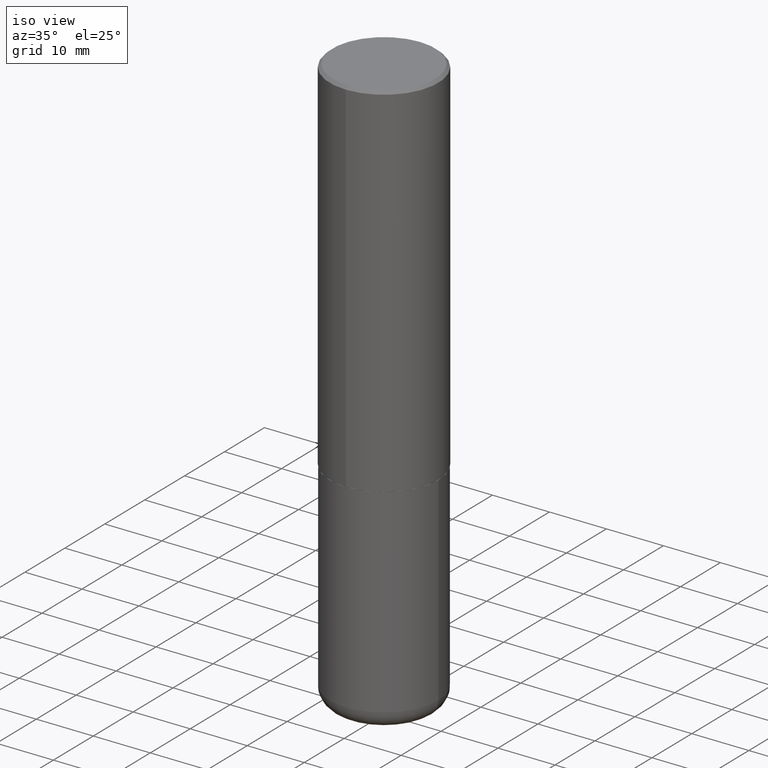
[diagram: clean part render]
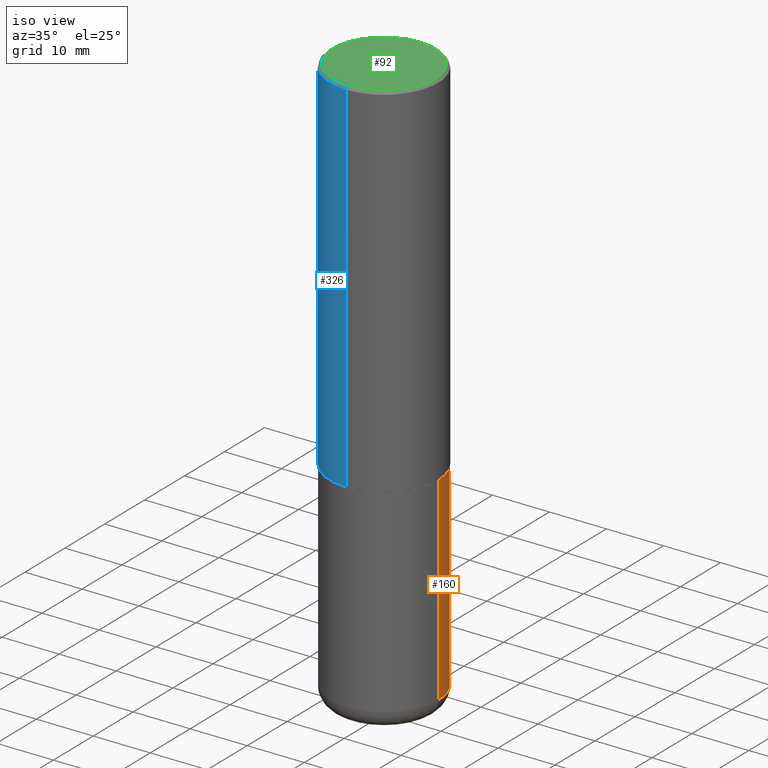
[diagram: same view with three faces highlighted in distinct colors, each labeled with its STEP entity id]
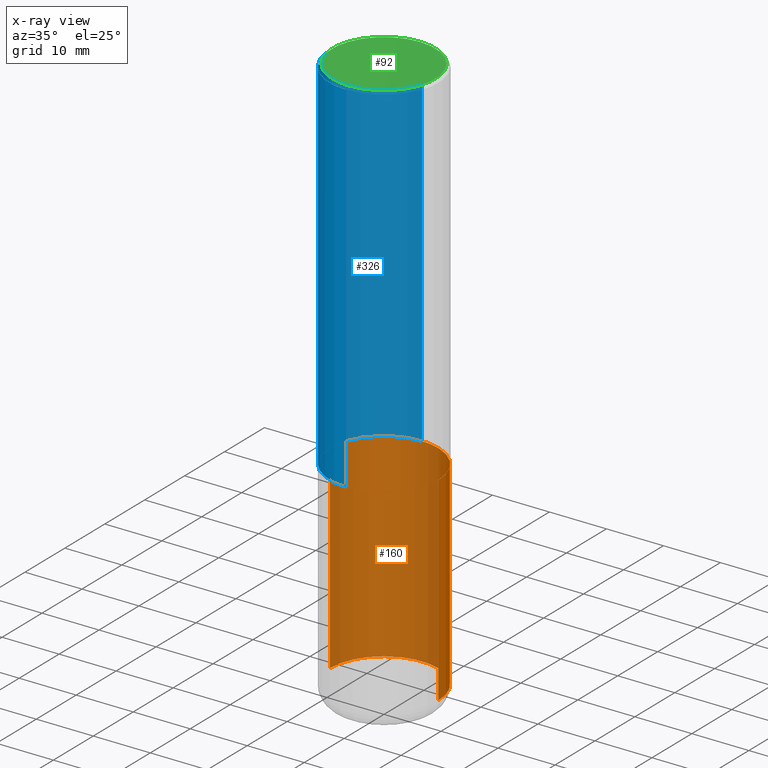
[diagram: x-ray of the same camera — body ghosted, the three highlighted faces saturated]
A machine part, iso view with three faces highlighted in distinct colors.
The next image is the same camera in x-ray (body ghosted, the three faces saturated) — at least one of them is partly hidden behind the body in this view.
Their STEP definitions:

[orange] entity #160 — the highlighted cylindrical surface (partial cylindrical patch) has radius 9.525 mm, axis along (-0, 0, 1).
#6 = CARTESIAN_POINT ( 'NONE',  ( 0.3749999999999999445, -1.614810119214953752E-14, -3.875000000000000000 ) ) ;
#12 = VECTOR ( 'NONE', #139, 39.37007874015748143 ) ;
#31 = FACE_OUTER_BOUND ( 'NONE', #249, .T. ) ;
#36 = DIRECTION ( 'NONE',  ( 1.000000000000000000, -6.982962677686263555E-15, 0.000000000000000000 ) ) ;
#69 = CARTESIAN_POINT ( 'NONE',  ( -0.3749999999999999445, 2.664535259100375303E-15, -1.844600658845589318E-29 ) ) ;
#95 = DIRECTION ( 'NONE',  ( 1.000000000000000000, -6.982962677686266711E-15, 4.876176775795935793E-29 ) ) ;
#100 = DIRECTION ( 'NONE',  ( -2.445468806185136597E-29, 3.491481338843145583E-15, 1.000000000000000000 ) ) ;
#110 = ORIENTED_EDGE ( 'NONE', *, *, #362, .F. ) ;
#124 = CARTESIAN_POINT ( 'NONE',  ( -0.3750000000000000555, -8.464561508462150527E-15, -2.499999999999999556 ) ) ;
#125 = ORIENTED_EDGE ( 'NONE', *, *, #232, .T. ) ;
#128 = CIRCLE ( 'NONE', #318, 0.3750000000000000555 ) ;
#136 = VERTEX_POINT ( 'NONE', #124 ) ;
#138 = ORIENTED_EDGE ( 'NONE', *, *, #166, .T. ) ;
#139 = DIRECTION ( 'NONE',  ( -2.445468806185136877E-29, 3.491481338843145188E-15, 1.000000000000000000 ) ) ;
#160 = ADVANCED_FACE ( 'NONE', ( #31 ), #293, .T. ) ;
#161 = DIRECTION ( 'NONE',  ( 1.000000000000000000, -6.982962677686264344E-15, 0.000000000000000000 ) ) ;
#166 = EDGE_CURVE ( 'NONE', #238, #229, #371, .T. ) ;
#183 = AXIS2_PLACEMENT_3D ( 'NONE', #226, #363, #36 ) ;
#184 = VECTOR ( 'NONE', #264, 39.37007874015748143 ) ;
#209 = CARTESIAN_POINT ( 'NONE',  ( -0.3749999999999999445, -1.086495492891681496E-14, -3.875000000000000000 ) ) ;
#224 = LINE ( 'NONE', #364, #184 ) ;
#225 = CARTESIAN_POINT ( 'NONE',  ( 6.113672015462840371E-29, -8.728703347107863365E-15, -2.499999999999999556 ) ) ;
#226 = CARTESIAN_POINT ( 'NONE',  ( 9.476191623967404313E-29, -1.352949018801718908E-14, -3.875000000000000000 ) ) ;
#229 = VERTEX_POINT ( 'NONE', #209 ) ;
#232 = EDGE_CURVE ( 'NONE', #229, #136, #277, .T. ) ;
#238 = VERTEX_POINT ( 'NONE', #6 ) ;
#249 = EDGE_LOOP ( 'NONE', ( #138, #125, #110, #386 ) ) ;
#257 = CARTESIAN_POINT ( 'NONE',  ( 0.000000000000000000, 0.000000000000000000, 0.000000000000000000 ) ) ;
#264 = DIRECTION ( 'NONE',  ( -2.445468806185136877E-29, 3.491481338843145188E-15, 1.000000000000000000 ) ) ;
#277 = LINE ( 'NONE', #69, #12 ) ;
#280 = VERTEX_POINT ( 'NONE', #344 ) ;
#293 = CYLINDRICAL_SURFACE ( 'NONE', #413, 0.3749999999999999445 ) ;
#318 = AXIS2_PLACEMENT_3D ( 'NONE', #225, #100, #161 ) ;
#344 = CARTESIAN_POINT ( 'NONE',  ( 0.3750000000000000555, -1.134731435124021180E-14, -2.499999999999999556 ) ) ;
#362 = EDGE_CURVE ( 'NONE', #280, #136, #128, .T. ) ;
#363 = DIRECTION ( 'NONE',  ( -2.445468806185136597E-29, 3.491481338843145583E-15, 1.000000000000000000 ) ) ;
#364 = CARTESIAN_POINT ( 'NONE',  ( 0.3749999999999999445, -2.618611004132349622E-15, 1.828566290923475642E-29 ) ) ;
#370 = EDGE_CURVE ( 'NONE', #238, #280, #224, .T. ) ;
#371 = CIRCLE ( 'NONE', #183, 0.3749999999999999445 ) ;
#386 = ORIENTED_EDGE ( 'NONE', *, *, #370, .F. ) ;
#391 = DIRECTION ( 'NONE',  ( -2.445468806185136597E-29, 3.491481338843145583E-15, 1.000000000000000000 ) ) ;
#413 = AXIS2_PLACEMENT_3D ( 'NONE', #257, #391, #95 ) ;

[blue] entity #326 — the highlighted cylindrical surface (partial cylindrical patch) has radius 9.525 mm, axis along (-0, 0, 1).
#3 = CARTESIAN_POINT ( 'NONE',  ( 6.113101053843864340E-29, -8.722527464786612949E-15, -2.498999999999999666 ) ) ;
#8 = DIRECTION ( 'NONE',  ( -2.446218909101186334E-29, 3.490407148774155485E-15, 1.000000000000000000 ) ) ;
#11 = FACE_OUTER_BOUND ( 'NONE', #261, .T. ) ;
#18 = DIRECTION ( 'NONE',  ( -6.982962677686265922E-15, -1.000000000000000000, 3.494488891895536035E-15 ) ) ;
#22 = ORIENTED_EDGE ( 'NONE', *, *, #68, .F. ) ;
#33 = LINE ( 'NONE', #97, #44 ) ;
#40 = DIRECTION ( 'NONE',  ( -6.982962677686266711E-15, -1.000000000000000000, 2.913971193241878794E-15 ) ) ;
#44 = VECTOR ( 'NONE', #369, 39.37007874015748143 ) ;
#48 = VERTEX_POINT ( 'NONE', #91 ) ;
#51 = AXIS2_PLACEMENT_3D ( 'NONE', #3, #8, #40 ) ;
#68 = EDGE_CURVE ( 'NONE', #48, #208, #114, .T. ) ;
#72 = CARTESIAN_POINT ( 'NONE',  ( -2.618611004132290852E-15, -0.3750000000000090483, -2.498999999999998778 ) ) ;
#78 = VERTEX_POINT ( 'NONE', #150 ) ;
#79 = ORIENTED_EDGE ( 'NONE', *, *, #205, .T. ) ;
#85 = DIRECTION ( 'NONE',  ( -2.446218909101186334E-29, 3.490407148774155485E-15, 1.000000000000000000 ) ) ;
#91 = CARTESIAN_POINT ( 'NONE',  ( 2.618611004132350411E-15, 0.3749999999999999445, -0.02000000000000139513 ) ) ;
#97 = CARTESIAN_POINT ( 'NONE',  ( -2.618611004132351200E-15, -0.3750000000000001665, 1.308902680790308800E-15 ) ) ;
#108 = CYLINDRICAL_SURFACE ( 'NONE', #218, 0.3750000000000001665 ) ;
#114 = CIRCLE ( 'NONE', #151, 0.3750000000000000555 ) ;
#126 = CARTESIAN_POINT ( 'NONE',  ( 4.892437818202393302E-31, -6.980814297548341687E-17, -0.02000000000000008715 ) ) ;
#132 = CARTESIAN_POINT ( 'NONE',  ( 2.664535259100376486E-15, 0.3750000000000001665, -1.308902680790308800E-15 ) ) ;
#134 = CARTESIAN_POINT ( 'NONE',  ( 0.000000000000000000, 0.000000000000000000, 0.000000000000000000 ) ) ;
#150 = CARTESIAN_POINT ( 'NONE',  ( 2.664535259100408040E-15, 0.3749999999999915623, -2.499000000000000998 ) ) ;
#151 = AXIS2_PLACEMENT_3D ( 'NONE', #126, #85, #18 ) ;
#165 = LINE ( 'NONE', #132, #398 ) ;
#174 = CARTESIAN_POINT ( 'NONE',  ( -2.572686749164323547E-15, -0.3750000000000001110, -0.01999999999999877570 ) ) ;
#187 = ORIENTED_EDGE ( 'NONE', *, *, #200, .F. ) ;
#200 = EDGE_CURVE ( 'NONE', #78, #48, #165, .T. ) ;
#205 = EDGE_CURVE ( 'NONE', #78, #279, #210, .T. ) ;
#208 = VERTEX_POINT ( 'NONE', #174 ) ;
#210 = CIRCLE ( 'NONE', #51, 0.3750000000000002776 ) ;
#218 = AXIS2_PLACEMENT_3D ( 'NONE', #134, #263, #394 ) ;
#261 = EDGE_LOOP ( 'NONE', ( #187, #79, #320, #22 ) ) ;
#263 = DIRECTION ( 'NONE',  ( -2.446218909101186334E-29, 3.490407148774155485E-15, 1.000000000000000000 ) ) ;
#279 = VERTEX_POINT ( 'NONE', #72 ) ;
#300 = DIRECTION ( 'NONE',  ( -2.446218909101186334E-29, 3.490407148774155485E-15, 1.000000000000000000 ) ) ;
#320 = ORIENTED_EDGE ( 'NONE', *, *, #418, .T. ) ;
#326 = ADVANCED_FACE ( 'NONE', ( #11 ), #108, .T. ) ;
#369 = DIRECTION ( 'NONE',  ( -2.446218909101186334E-29, 3.490407148774155485E-15, 1.000000000000000000 ) ) ;
#394 = DIRECTION ( 'NONE',  ( -6.982962677686266711E-15, -1.000000000000000000, 3.490407148774155091E-15 ) ) ;
#398 = VECTOR ( 'NONE', #300, 39.37007874015748143 ) ;
#418 = EDGE_CURVE ( 'NONE', #279, #208, #33, .T. ) ;

[green] entity #92 — the highlighted planar face has unit normal (0, -0, -1).
#25 = VERTEX_POINT ( 'NONE', #389 ) ;
#45 = DIRECTION ( 'NONE',  ( -6.982962677686265922E-15, -1.000000000000000000, 3.490407148774155485E-15 ) ) ;
#52 = CARTESIAN_POINT ( 'NONE',  ( 6.483192248959793905E-45, -9.250595066719118931E-31, -2.650291118607169846E-16 ) ) ;
#66 = AXIS2_PLACEMENT_3D ( 'NONE', #52, #179, #45 ) ;
#88 = VERTEX_POINT ( 'NONE', #404 ) ;
#92 = ADVANCED_FACE ( 'NONE', ( #302 ), #411, .F. ) ;
#93 = ORIENTED_EDGE ( 'NONE', *, *, #186, .T. ) ;
#109 = DIRECTION ( 'NONE',  ( 6.982962677686265922E-15, 1.000000000000000000, -3.490407148774155485E-15 ) ) ;
#163 = CARTESIAN_POINT ( 'NONE',  ( 6.483192248959793905E-45, -9.250595066719118931E-31, -2.650291118607169846E-16 ) ) ;
#168 = DIRECTION ( 'NONE',  ( -2.446218909101186334E-29, 3.490407148774155485E-15, 1.000000000000000000 ) ) ;
#179 = DIRECTION ( 'NONE',  ( -2.446218909101186334E-29, 3.490407148774155485E-15, 1.000000000000000000 ) ) ;
#186 = EDGE_CURVE ( 'NONE', #25, #88, #227, .T. ) ;
#198 = EDGE_LOOP ( 'NONE', ( #304, #93 ) ) ;
#212 = CARTESIAN_POINT ( 'NONE',  ( 2.478951750578626181E-15, 0.3550000000000002598, -1.371609093745184381E-15 ) ) ;
#227 = CIRCLE ( 'NONE', #312, 0.3550000000000002598 ) ;
#286 = EDGE_CURVE ( 'NONE', #88, #25, #290, .T. ) ;
#290 = CIRCLE ( 'NONE', #66, 0.3550000000000002598 ) ;
#302 = FACE_OUTER_BOUND ( 'NONE', #198, .T. ) ;
#304 = ORIENTED_EDGE ( 'NONE', *, *, #286, .T. ) ;
#310 = DIRECTION ( 'NONE',  ( 2.446218909101186054E-29, -3.490407148774155485E-15, -1.000000000000000000 ) ) ;
#312 = AXIS2_PLACEMENT_3D ( 'NONE', #163, #168, #365 ) ;
#365 = DIRECTION ( 'NONE',  ( -6.982962677686265922E-15, -1.000000000000000000, 3.490407148774155485E-15 ) ) ;
#378 = AXIS2_PLACEMENT_3D ( 'NONE', #212, #310, #109 ) ;
#389 = CARTESIAN_POINT ( 'NONE',  ( -2.504081769186609399E-15, -0.3550000000000002598, 9.740654259541092244E-16 ) ) ;
#404 = CARTESIAN_POINT ( 'NONE',  ( 2.548781377355488296E-15, 0.3550000000000002598, -1.504123649675543292E-15 ) ) ;
#411 = PLANE ( 'NONE',  #378 ) ;